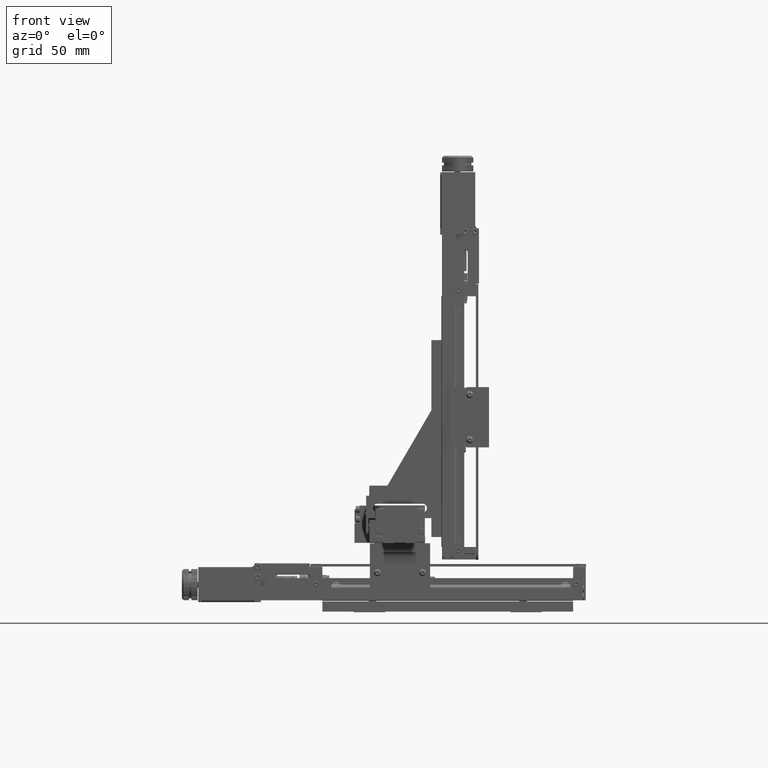
[diagram: clean part render]
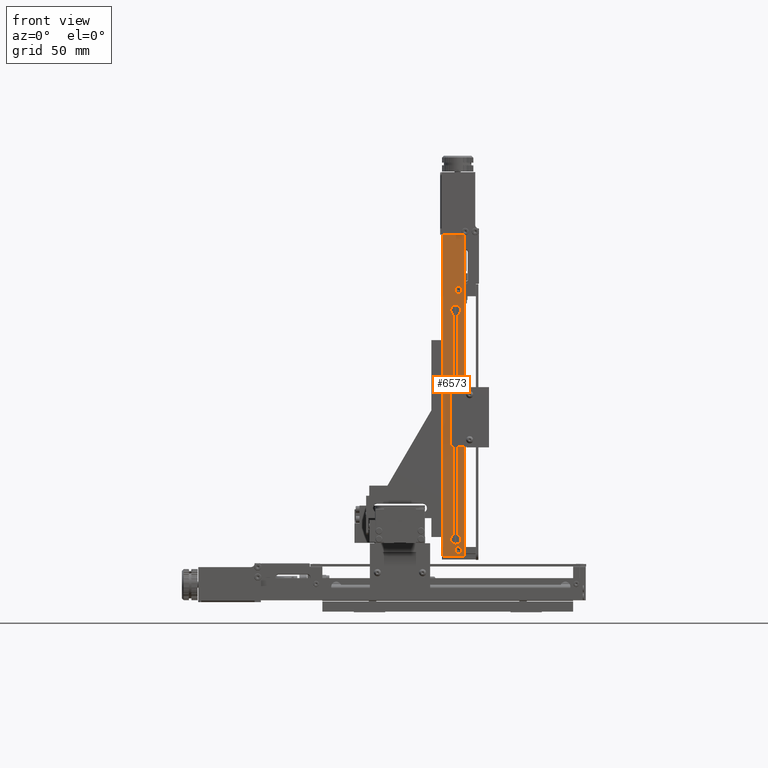
[diagram: same view with one face highlighted and labeled with its STEP entity id]
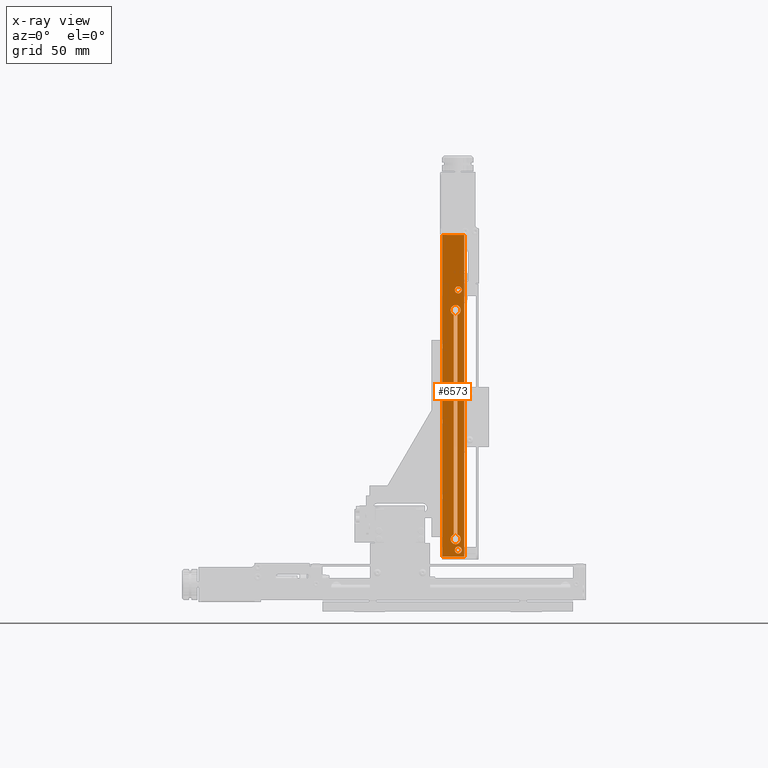
[diagram: x-ray of the same camera — body ghosted, the highlighted face saturated]
A machine part, front view. The second image highlights one B-rep face of the part: STEP entity #6573.
The next image is the same camera in x-ray: the body ghosted, the highlighted face saturated — about 0% of this face is hidden behind the body in this view.
In plain terms, the highlighted planar face has unit normal (0, -1, 0).
Its self-contained STEP definition (entity closure, byte-faithful):
#68=FACE_BOUND('',#20151,.T.);
#69=FACE_BOUND('',#20152,.T.);
#70=FACE_BOUND('',#20153,.T.);
#1982=PLANE('',#120440);
#6573=ADVANCED_FACE('',(#13335,#68,#69,#70),#1982,.T.);
#13335=FACE_OUTER_BOUND('',#20150,.T.);
#20150=EDGE_LOOP('',(#32975,#32976,#32977,#32978));
#20151=EDGE_LOOP('',(#32979,#32980,#32981,#32982));
#20152=EDGE_LOOP('',(#32983,#32984,#32985,#32986));
#20153=EDGE_LOOP('',(#32987,#32988,#32989,#32990));
#32975=ORIENTED_EDGE('',*,*,#68865,.T.);
#32976=ORIENTED_EDGE('',*,*,#68843,.F.);
#32977=ORIENTED_EDGE('',*,*,#68809,.F.);
#32978=ORIENTED_EDGE('',*,*,#68866,.T.);
#32979=ORIENTED_EDGE('',*,*,#68861,.T.);
#32980=ORIENTED_EDGE('',*,*,#68852,.T.);
#32981=ORIENTED_EDGE('',*,*,#68864,.T.);
#32982=ORIENTED_EDGE('',*,*,#68856,.T.);
#32983=ORIENTED_EDGE('',*,*,#68879,.T.);
#32984=ORIENTED_EDGE('',*,*,#83497,.T.);
#32985=ORIENTED_EDGE('',*,*,#68878,.T.);
#32986=ORIENTED_EDGE('',*,*,#68877,.T.);
#32987=ORIENTED_EDGE('',*,*,#68869,.T.);
#32988=ORIENTED_EDGE('',*,*,#83491,.T.);
#32989=ORIENTED_EDGE('',*,*,#68868,.T.);
#32990=ORIENTED_EDGE('',*,*,#68867,.T.);
#68809=EDGE_CURVE('',#106759,#106760,#87305,.T.);
#68843=EDGE_CURVE('',#106760,#106794,#87333,.T.);
#68852=EDGE_CURVE('',#106803,#106802,#87342,.T.);
#68856=EDGE_CURVE('',#106807,#106806,#87346,.T.);
#68861=EDGE_CURVE('',#106806,#106803,#98819,.T.);
#68864=EDGE_CURVE('',#106802,#106807,#98822,.T.);
#68865=EDGE_CURVE('',#106810,#106794,#87351,.T.);
#68866=EDGE_CURVE('',#106759,#106810,#87352,.T.);
#68867=EDGE_CURVE('',#106817,#106814,#98823,.T.);
#68868=EDGE_CURVE('',#106813,#106817,#98824,.T.);
#68869=EDGE_CURVE('',#106814,#116606,#98825,.T.);
#68877=EDGE_CURVE('',#106821,#106812,#98831,.T.);
#68878=EDGE_CURVE('',#106811,#106821,#98832,.T.);
#68879=EDGE_CURVE('',#106812,#116610,#98833,.T.);
#83491=EDGE_CURVE('',#116606,#106813,#103583,.T.);
#83497=EDGE_CURVE('',#116610,#106811,#103587,.T.);
#87305=B_SPLINE_CURVE_WITH_KNOTS('',1,(#182184,#182185),.UNSPECIFIED.,.F.,
 .F.,(2,2),(0.,17.5),.UNSPECIFIED.);
#87333=B_SPLINE_CURVE_WITH_KNOTS('',1,(#182258,#182259),.UNSPECIFIED.,.F.,
 .F.,(2,2),(0.,256.6),.UNSPECIFIED.);
#87342=B_SPLINE_CURVE_WITH_KNOTS('',1,(#182276,#182277),.UNSPECIFIED.,.F.,
 .F.,(2,2),(-175.283801512905,0.),.UNSPECIFIED.);
#87346=B_SPLINE_CURVE_WITH_KNOTS('',1,(#182284,#182285),.UNSPECIFIED.,.F.,
 .F.,(2,2),(-175.283801512905,0.),.UNSPECIFIED.);
#87351=B_SPLINE_CURVE_WITH_KNOTS('',1,(#182330,#182331),.UNSPECIFIED.,.F.,
 .F.,(2,2),(0.,17.5),.UNSPECIFIED.);
#87352=B_SPLINE_CURVE_WITH_KNOTS('',1,(#182332,#182333),.UNSPECIFIED.,.F.,
 .F.,(2,2),(0.,256.6),.UNSPECIFIED.);
#98819=(
BOUNDED_CURVE()
B_SPLINE_CURVE(2,(#182294,#182295,#182296,#182297,#182298,#182299,#182300,
#182301,#182302),.UNSPECIFIED.,.F.,.F.)
B_SPLINE_CURVE_WITH_KNOTS((3,2,2,2,3),(-22.0575670327188,-16.5431752745391,
-11.0287835163594,-5.51439175817971,0.),.UNSPECIFIED.)
CURVE()
GEOMETRIC_REPRESENTATION_ITEM()
RATIONAL_B_SPLINE_CURVE((1.,0.771692057253783,1.,0.771692057253783,1.,0.771692057253783,
1.,0.771692057253783,1.))
REPRESENTATION_ITEM('')
);
#98822=(
BOUNDED_CURVE()
B_SPLINE_CURVE(2,(#182321,#182322,#182323,#182324,#182325,#182326,#182327,
#182328,#182329),.UNSPECIFIED.,.F.,.F.)
B_SPLINE_CURVE_WITH_KNOTS((3,2,2,2,3),(-22.0575670327521,-16.5431752745641,
-11.0287835163761,-5.51439175818803,0.),.UNSPECIFIED.)
CURVE()
GEOMETRIC_REPRESENTATION_ITEM()
RATIONAL_B_SPLINE_CURVE((1.,0.771692057253698,1.,0.771692057253698,1.,0.771692057253698,
1.,0.771692057253698,1.))
REPRESENTATION_ITEM('')
);
#98823=(
BOUNDED_CURVE()
B_SPLINE_CURVE(2,(#182334,#182335,#182336),.UNSPECIFIED.,.F.,.F.)
B_SPLINE_CURVE_WITH_KNOTS((3,3),(-4.31968989868599,0.),.UNSPECIFIED.)
CURVE()
GEOMETRIC_REPRESENTATION_ITEM()
RATIONAL_B_SPLINE_CURVE((1.,0.707106781186546,1.))
REPRESENTATION_ITEM('')
);
#98824=(
BOUNDED_CURVE()
B_SPLINE_CURVE(2,(#182337,#182338,#182339),.UNSPECIFIED.,.F.,.F.)
B_SPLINE_CURVE_WITH_KNOTS((3,3),(-8.63937979737194,-4.31968989868599),
 .UNSPECIFIED.)
CURVE()
GEOMETRIC_REPRESENTATION_ITEM()
RATIONAL_B_SPLINE_CURVE((1.,0.707106781186552,1.))
REPRESENTATION_ITEM('')
);
#98825=(
BOUNDED_CURVE()
B_SPLINE_CURVE(2,(#182340,#182341,#182342),.UNSPECIFIED.,.F.,.F.)
B_SPLINE_CURVE_WITH_KNOTS((3,3),(-8.63937979737194,-4.31968989868595),
 .UNSPECIFIED.)
CURVE()
GEOMETRIC_REPRESENTATION_ITEM()
RATIONAL_B_SPLINE_CURVE((1.,0.707106781186545,1.))
REPRESENTATION_ITEM('')
);
#98831=(
BOUNDED_CURVE()
B_SPLINE_CURVE(2,(#182366,#182367,#182368),.UNSPECIFIED.,.F.,.F.)
B_SPLINE_CURVE_WITH_KNOTS((3,3),(-4.31968989868598,0.),.UNSPECIFIED.)
CURVE()
GEOMETRIC_REPRESENTATION_ITEM()
RATIONAL_B_SPLINE_CURVE((1.,0.707106781186551,1.))
REPRESENTATION_ITEM('')
);
#98832=(
BOUNDED_CURVE()
B_SPLINE_CURVE(2,(#182369,#182370,#182371),.UNSPECIFIED.,.F.,.F.)
B_SPLINE_CURVE_WITH_KNOTS((3,3),(-8.63937979737203,-4.31968989868598),
 .UNSPECIFIED.)
CURVE()
GEOMETRIC_REPRESENTATION_ITEM()
RATIONAL_B_SPLINE_CURVE((1.,0.707106781186531,1.))
REPRESENTATION_ITEM('')
);
#98833=(
BOUNDED_CURVE()
B_SPLINE_CURVE(2,(#182372,#182373,#182374),.UNSPECIFIED.,.F.,.F.)
B_SPLINE_CURVE_WITH_KNOTS((3,3),(-8.63937979737183,-4.31968989868594),
 .UNSPECIFIED.)
CURVE()
GEOMETRIC_REPRESENTATION_ITEM()
RATIONAL_B_SPLINE_CURVE((1.,0.707106781186551,1.))
REPRESENTATION_ITEM('')
);
#103583=(
BOUNDED_CURVE()
B_SPLINE_CURVE(2,(#224998,#224999,#225000),.UNSPECIFIED.,.F.,.F.)
B_SPLINE_CURVE_WITH_KNOTS((3,3),(-4.31968989868595,0.),.UNSPECIFIED.)
CURVE()
GEOMETRIC_REPRESENTATION_ITEM()
RATIONAL_B_SPLINE_CURVE((1.,0.707106781186549,1.))
REPRESENTATION_ITEM('')
);
#103587=(
BOUNDED_CURVE()
B_SPLINE_CURVE(2,(#225018,#225019,#225020),.UNSPECIFIED.,.F.,.F.)
B_SPLINE_CURVE_WITH_KNOTS((3,3),(-4.31968989868594,0.),.UNSPECIFIED.)
CURVE()
GEOMETRIC_REPRESENTATION_ITEM()
RATIONAL_B_SPLINE_CURVE((1.,0.707106781186545,1.))
REPRESENTATION_ITEM('')
);
#106759=VERTEX_POINT('',#161753);
#106760=VERTEX_POINT('',#161754);
#106794=VERTEX_POINT('',#161788);
#106802=VERTEX_POINT('',#161796);
#106803=VERTEX_POINT('',#161797);
#106806=VERTEX_POINT('',#161800);
#106807=VERTEX_POINT('',#161801);
#106810=VERTEX_POINT('',#161804);
#106811=VERTEX_POINT('',#161805);
#106812=VERTEX_POINT('',#161806);
#106813=VERTEX_POINT('',#161807);
#106814=VERTEX_POINT('',#161808);
#106817=VERTEX_POINT('',#161811);
#106821=VERTEX_POINT('',#161815);
#116606=VERTEX_POINT('',#171600);
#116610=VERTEX_POINT('',#171604);
#120440=AXIS2_PLACEMENT_3D('',#135530,#126615,$);
#126615=DIRECTION('',(0.,-1.,0.));
#135530=CARTESIAN_POINT('',(44.5860922200088,-49.8223779737266,326.578020535244));
#161753=CARTESIAN_POINT('',(46.4560922200113,-49.8223779737267,300.798020535244));
#161754=CARTESIAN_POINT('',(63.9560922200113,-49.8223779737271,300.798020535243));
#161788=CARTESIAN_POINT('',(63.9560922200089,-49.8223779737259,44.198020535243));
#161796=CARTESIAN_POINT('',(58.626092220009,-49.8223779737259,61.9061197787909));
#161797=CARTESIAN_POINT('',(58.6260922200107,-49.8223779737267,237.189921291696));
#161800=CARTESIAN_POINT('',(55.6260922200107,-49.8223779737265,237.189921291696));
#161801=CARTESIAN_POINT('',(55.626092220009,-49.8223779737258,61.9061197787909));
#161804=CARTESIAN_POINT('',(46.4560922200089,-49.8223779737255,44.1980205352432));
#161805=CARTESIAN_POINT('',(59.2560922200109,-49.8223779737268,254.248020535243));
#161806=CARTESIAN_POINT('',(59.2560922200109,-49.8223779737268,259.748020535243));
#161807=CARTESIAN_POINT('',(59.2560922200089,-49.8223779737258,46.7480205352431));
#161808=CARTESIAN_POINT('',(59.2560922200089,-49.8223779737259,52.2480205352431));
#161811=CARTESIAN_POINT('',(56.5060922200089,-49.8223779737258,49.4980205352431));
#161815=CARTESIAN_POINT('',(56.5060922200108,-49.8223779737267,256.998020535243));
#171600=CARTESIAN_POINT('',(62.0060922200089,-49.8223779737259,49.4980205352431));
#171604=CARTESIAN_POINT('',(62.0060922200108,-49.8223779737268,256.998020535243));
#182184=CARTESIAN_POINT('',(46.4560922200113,-49.8223779737267,300.798020535244));
#182185=CARTESIAN_POINT('',(63.9560922200113,-49.8223779737271,300.798020535243));
#182258=CARTESIAN_POINT('',(63.9560922200113,-49.8223779737271,300.798020535243));
#182259=CARTESIAN_POINT('',(63.9560922200089,-49.8223779737259,44.198020535243));
#182276=CARTESIAN_POINT('',(58.6260922200107,-49.8223779737267,237.189921291696));
#182277=CARTESIAN_POINT('',(58.626092220009,-49.8223779737259,61.9061197787909));
#182284=CARTESIAN_POINT('',(55.626092220009,-49.8223779737258,61.9061197787909));
#182285=CARTESIAN_POINT('',(55.6260922200107,-49.8223779737265,237.189921291696));
#182294=CARTESIAN_POINT('',(55.6260922200107,-49.8223779737265,237.189921291696));
#182295=CARTESIAN_POINT('',(52.5700317152323,-49.8223779737264,238.426158634898));
#182296=CARTESIAN_POINT('',(53.1997455100204,-49.8223779737263,241.662089585065));
#182297=CARTESIAN_POINT('',(53.8294593048084,-49.8223779737262,244.898020535232));
#182298=CARTESIAN_POINT('',(57.1260922200107,-49.8223779737263,244.898020535232));
#182299=CARTESIAN_POINT('',(60.422725135213,-49.8223779737264,244.898020535232));
#182300=CARTESIAN_POINT('',(61.0524389300011,-49.8223779737266,241.662089585065));
#182301=CARTESIAN_POINT('',(61.6821527247891,-49.8223779737267,238.426158634898));
#182302=CARTESIAN_POINT('',(58.6260922200107,-49.8223779737267,237.189921291696));
#182321=CARTESIAN_POINT('',(58.626092220009,-49.8223779737259,61.9061197787909));
#182322=CARTESIAN_POINT('',(61.682152724793,-49.8223779737261,60.6698824355881));
#182323=CARTESIAN_POINT('',(61.0524389300048,-49.8223779737262,57.4339514854157));
#182324=CARTESIAN_POINT('',(60.4227251352166,-49.8223779737263,54.1980205352434));
#182325=CARTESIAN_POINT('',(57.126092220009,-49.8223779737262,54.1980205352434));
#182326=CARTESIAN_POINT('',(53.8294593048015,-49.8223779737261,54.1980205352434));
#182327=CARTESIAN_POINT('',(53.1997455100133,-49.822377973726,57.4339514854157));
#182328=CARTESIAN_POINT('',(52.5700317152251,-49.8223779737258,60.669882435588));
#182329=CARTESIAN_POINT('',(55.626092220009,-49.8223779737258,61.9061197787909));
#182330=CARTESIAN_POINT('',(46.4560922200089,-49.8223779737255,44.1980205352432));
#182331=CARTESIAN_POINT('',(63.9560922200089,-49.8223779737259,44.198020535243));
#182332=CARTESIAN_POINT('',(46.4560922200113,-49.8223779737267,300.798020535244));
#182333=CARTESIAN_POINT('',(46.4560922200089,-49.8223779737255,44.1980205352432));
#182334=CARTESIAN_POINT('',(56.5060922200089,-49.8223779737258,49.4980205352431));
#182335=CARTESIAN_POINT('',(56.5060922200089,-49.8223779737258,52.2480205352431));
#182336=CARTESIAN_POINT('',(59.2560922200089,-49.8223779737258,52.2480205352431));
#182337=CARTESIAN_POINT('',(59.2560922200089,-49.8223779737258,46.7480205352431));
#182338=CARTESIAN_POINT('',(56.5060922200089,-49.8223779737258,46.7480205352431));
#182339=CARTESIAN_POINT('',(56.5060922200089,-49.8223779737258,49.4980205352431));
#182340=CARTESIAN_POINT('',(59.2560922200089,-49.8223779737258,52.2480205352431));
#182341=CARTESIAN_POINT('',(62.006092220009,-49.8223779737259,52.2480205352431));
#182342=CARTESIAN_POINT('',(62.0060922200089,-49.8223779737259,49.4980205352431));
#182366=CARTESIAN_POINT('',(56.5060922200108,-49.8223779737267,256.998020535243));
#182367=CARTESIAN_POINT('',(56.5060922200109,-49.8223779737267,259.748020535243));
#182368=CARTESIAN_POINT('',(59.2560922200109,-49.8223779737268,259.748020535243));
#182369=CARTESIAN_POINT('',(59.2560922200109,-49.8223779737268,254.248020535243));
#182370=CARTESIAN_POINT('',(56.5060922200108,-49.8223779737267,254.248020535243));
#182371=CARTESIAN_POINT('',(56.5060922200108,-49.8223779737267,256.998020535243));
#182372=CARTESIAN_POINT('',(59.2560922200109,-49.8223779737268,259.748020535243));
#182373=CARTESIAN_POINT('',(62.0060922200109,-49.8223779737268,259.748020535243));
#182374=CARTESIAN_POINT('',(62.0060922200108,-49.8223779737268,256.998020535243));
#224998=CARTESIAN_POINT('',(62.0060922200089,-49.8223779737259,49.4980205352431));
#224999=CARTESIAN_POINT('',(62.0060922200089,-49.8223779737259,46.7480205352431));
#225000=CARTESIAN_POINT('',(59.2560922200089,-49.8223779737258,46.7480205352431));
#225018=CARTESIAN_POINT('',(62.0060922200108,-49.8223779737268,256.998020535243));
#225019=CARTESIAN_POINT('',(62.0060922200108,-49.8223779737268,254.248020535243));
#225020=CARTESIAN_POINT('',(59.2560922200109,-49.8223779737268,254.248020535243));